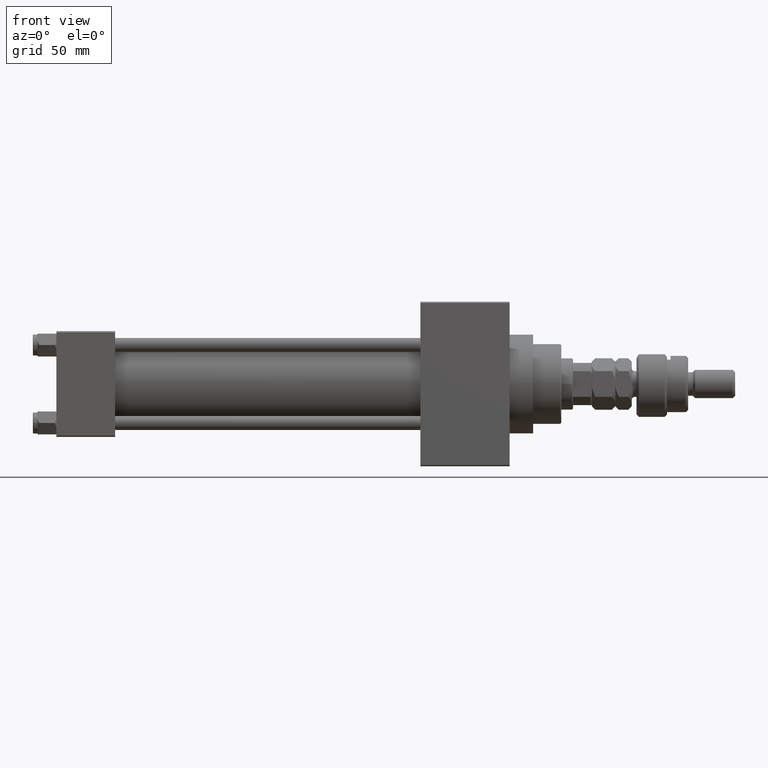
[diagram: clean part render]
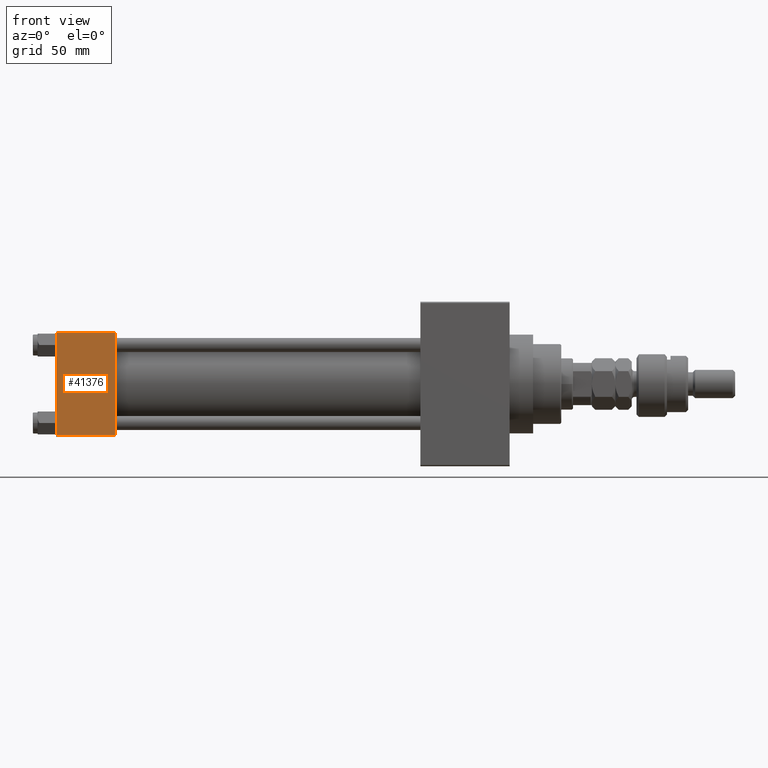
[diagram: same view with one face highlighted and labeled with its STEP entity id]
A machine part, front view. The second image highlights one B-rep face of the part: STEP entity #41376.
In plain terms, the highlighted planar face has unit normal (0, 1, 0).
Its self-contained STEP definition (entity closure, byte-faithful):
#1153 = CARTESIAN_POINT ( 'NONE',  ( 25.00000000000000000, -22.50000000000000000, 22.50000000000000000 ) ) ;
#2115 = CARTESIAN_POINT ( 'NONE',  ( 0.000000000000000000, -22.50000000000000000, 22.00000000000000000 ) ) ;
#3490 = LINE ( 'NONE', #36078, #41773 ) ;
#4774 = VECTOR ( 'NONE', #10672, 1000.000000000000000 ) ;
#8863 = ORIENTED_EDGE ( 'NONE', *, *, #51388, .T. ) ;
#10672 = DIRECTION ( 'NONE',  ( 1.000000000000000000, 0.000000000000000000, 0.000000000000000000 ) ) ;
#11653 = DIRECTION ( 'NONE',  ( 0.000000000000000000, 0.000000000000000000, -1.000000000000000000 ) ) ;
#12316 = EDGE_LOOP ( 'NONE', ( #40824, #8863, #48446, #34503 ) ) ;
#13754 = PLANE ( 'NONE',  #47165 ) ;
#14873 = CARTESIAN_POINT ( 'NONE',  ( 0.000000000000000000, -22.50000000000000000, -21.99999999999997158 ) ) ;
#15308 = DIRECTION ( 'NONE',  ( 0.000000000000000000, 0.000000000000000000, -1.000000000000000000 ) ) ;
#17183 = DIRECTION ( 'NONE',  ( -0.000000000000000000, 1.000000000000000000, 0.000000000000000000 ) ) ;
#18455 = EDGE_CURVE ( 'NONE', #29368, #33889, #35542, .T. ) ;
#18552 = VECTOR ( 'NONE', #15308, 1000.000000000000000 ) ;
#25571 = FACE_OUTER_BOUND ( 'NONE', #12316, .T. ) ;
#28939 = CARTESIAN_POINT ( 'NONE',  ( 25.00000000000000000, -22.50000000000000000, 22.00000000000000000 ) ) ;
#29240 = EDGE_CURVE ( 'NONE', #43310, #45293, #3490, .T. ) ;
#29368 = VERTEX_POINT ( 'NONE', #2115 ) ;
#33889 = VERTEX_POINT ( 'NONE', #14873 ) ;
#34503 = ORIENTED_EDGE ( 'NONE', *, *, #37294, .T. ) ;
#34837 = LINE ( 'NONE', #46634, #4774 ) ;
#35418 = VECTOR ( 'NONE', #45657, 1000.000000000000000 ) ;
#35542 = LINE ( 'NONE', #39203, #18552 ) ;
#36078 = CARTESIAN_POINT ( 'NONE',  ( 25.00000000000000000, -22.50000000000000000, 22.50000000000000000 ) ) ;
#36713 = CARTESIAN_POINT ( 'NONE',  ( 25.00000000000000000, -22.50000000000000000, -21.99999999999997158 ) ) ;
#37294 = EDGE_CURVE ( 'NONE', #43310, #29368, #45913, .T. ) ;
#39203 = CARTESIAN_POINT ( 'NONE',  ( 0.000000000000000000, -22.50000000000000000, 22.50000000000000000 ) ) ;
#40824 = ORIENTED_EDGE ( 'NONE', *, *, #18455, .T. ) ;
#41376 = ADVANCED_FACE ( 'NONE', ( #25571 ), #13754, .F. ) ;
#41583 = DIRECTION ( 'NONE',  ( 0.000000000000000000, -0.000000000000000000, 1.000000000000000000 ) ) ;
#41773 = VECTOR ( 'NONE', #11653, 1000.000000000000000 ) ;
#43194 = CARTESIAN_POINT ( 'NONE',  ( 25.00000000000000000, -22.50000000000000000, 22.00000000000000000 ) ) ;
#43310 = VERTEX_POINT ( 'NONE', #28939 ) ;
#45293 = VERTEX_POINT ( 'NONE', #36713 ) ;
#45657 = DIRECTION ( 'NONE',  ( -1.000000000000000000, 0.000000000000000000, 0.000000000000000000 ) ) ;
#45913 = LINE ( 'NONE', #43194, #35418 ) ;
#46634 = CARTESIAN_POINT ( 'NONE',  ( 25.00000000000000000, -22.50000000000000000, -21.99999999999998579 ) ) ;
#47165 = AXIS2_PLACEMENT_3D ( 'NONE', #1153, #17183, #41583 ) ;
#48446 = ORIENTED_EDGE ( 'NONE', *, *, #29240, .F. ) ;
#51388 = EDGE_CURVE ( 'NONE', #33889, #45293, #34837, .T. ) ;